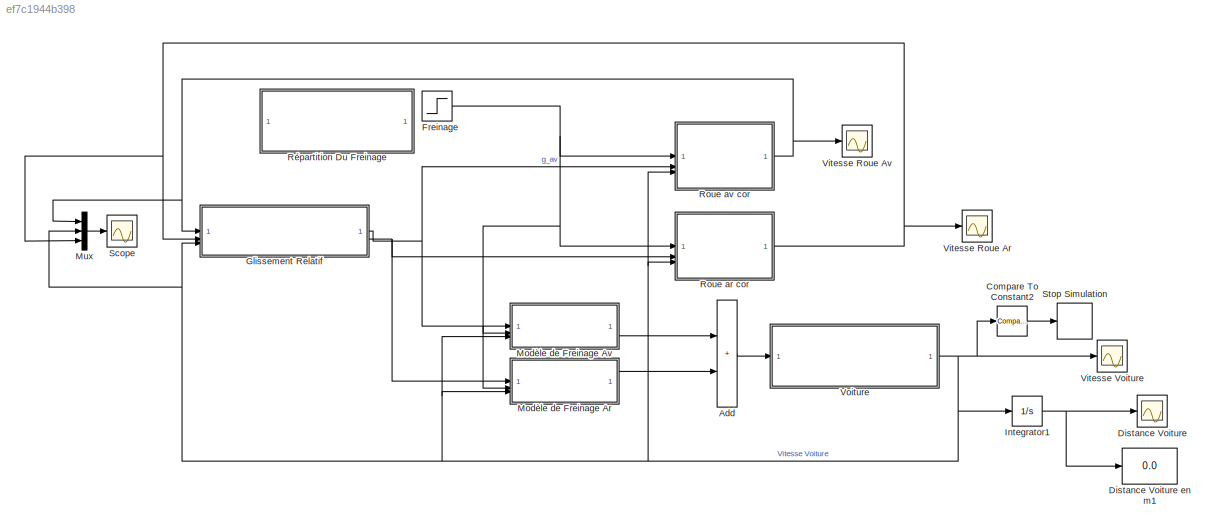
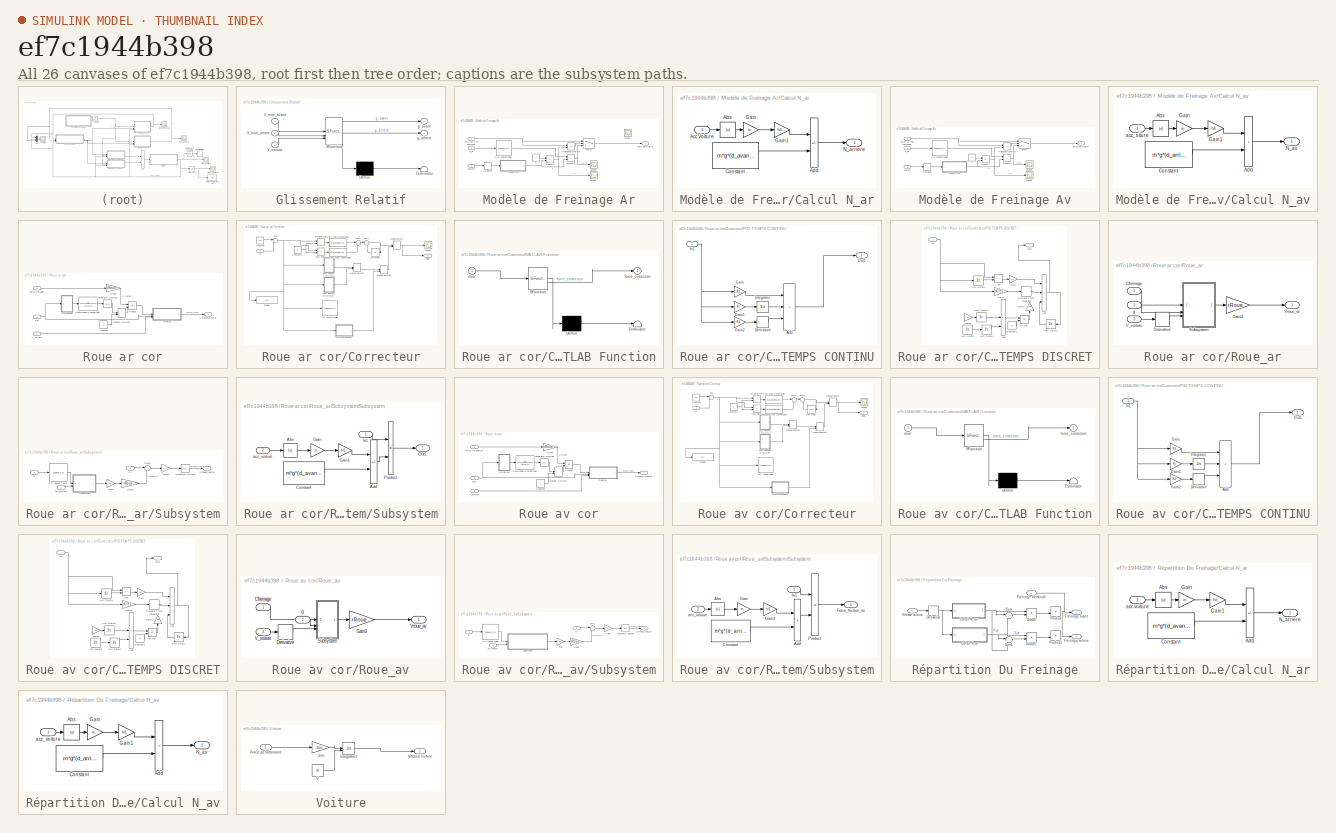
[diagram: thumbnail index - all 26 canvases of the model, root first then tree order]
MODEL slx_ef7c1944b398
KIND model
CONFIG AbsTol = auto
CONFIG EnableMultiTasking = off
CONFIG FixedStep = auto
CONFIG InitFcn = Cte_TP_ABS_CHERIF
CONFIG MaxStep = auto
CONFIG MinStep = auto
CONFIG RelTol = 1e-3
CONFIG SampleTimeConstraint = Unconstrained
CONFIG SolverName = ode45
CONFIG StartTime = 0.0
CONFIG StopTime = 10
BLOCK [Sum] Add
  IconShape = rectangular
BLOCK [Reference] Compare To Constant2  REF=simulink/Logic and Bit
Operations/Compare
To Constant
  SourceBlock = simulink/Logic and Bit\nOperations/Compare\nTo Constant
  SourceType = Compare To Constant
BLOCK [Scope] Distance Voiture
  Floating = off
  NumInputPorts = 1
  ScopeSpecificationString = Simulink.scopes.TimeScopeBlockCfg('CurrentConfiguration', extmgr.ConfigurationSet(extmgr.Configuration('Core','General UI',true),extmgr.Configuration('Core','Source UI',true),extmgr.Configuration('Sources','WiredSimulink',true,'DataLoggingVariableName','ScopeData9'),extmgr.Configuration('Visuals','Time Domain',true,'SerializedDisplays',{struct('MinYLimReal','-7.82528','MaxYLimReal','70.42753','YLa...<+1639ch>
BLOCK [Display] Distance Voiture en m1
  Decimation = 1
BLOCK [Step] Freinage
  After = 4000
  SampleTime = 0
  Time = 0
BLOCK [SubSystem] Glissement Relatif
  ErrorFcn = Stateflow.Translate.translate
  PermitHierarchicalResolution = ExplicitOnly
  SFBlockType = MATLAB Function
  TreatAsAtomicUnit = on
BLOCK [Demux] Glissement Relatif/ Demux 
  Outputs = 1
BLOCK [S-Function] Glissement Relatif/ SFunction 
  EnableBusSupport = on
  FunctionName = sf_sfun
  PortCounts = [3 3]
  SFcnIsStateOwnerBlock = off
  SFunctionDeploymentMode = off
  Tag = Stateflow S-Function 2
BLOCK [Terminator] Glissement Relatif/ Terminator 
BLOCK [Inport] Glissement Relatif/V_roue_arriere
  Port = 2
BLOCK [Inport] Glissement Relatif/V_roue_avant
BLOCK [Inport] Glissement Relatif/V_voiture
  Port = 3
BLOCK [Outport] Glissement Relatif/g_arriere
  Port = 2
BLOCK [Outport] Glissement Relatif/g_avant
BLOCK [Integrator] Integrator1
BLOCK [SubSystem] Modèle de Freinage Ar
BLOCK [Lookup_n-D] Modèle de Freinage Ar/1-D Lookup Table
  BreakpointsForDimension1 = [0;0.050000000000000003;0.10000000000000001;0.14999999999999999;0.20000000000000001;0.25;0.29999999999999999;0.34999999999999998;0.40000000000000002;0.45000000000000001;0.5;0.55000000000000004;0.59999999999999998;0.65000000000000002;0.69999999999999996;0.75;0.80000000000000004;0.84999999999999998;0.90000000000000002;0.94999999999999996;1]  <repeated x4 — deduplicated; at blocks: 1-D Lookup Table>
  InputPortMap = u0
  InternalRulePriority = Speed
  NumberOfTableDimensions = 1
  RndMeth = Simplest
  Table = [0;0.59999999999999998;0.92000000000000004;0.93999999999999995;0.94999999999999996;0.93000000000000005;0.90000000000000002;0.84999999999999998;0.80000000000000004;0.75;0.69999999999999996;0.67000000000000004;0.66000000000000003;0.65000000000000002;0.64500000000000002;0.64000000000000001;0.63700000000000001;0.63500000000000001;0.63;0.625;0.62]  <repeated x4 — deduplicated; at blocks: 1-D Lookup Table>
BLOCK [SubSystem] Modèle de Freinage Ar/Calcul N_ar
BLOCK [Abs] Modèle de Freinage Ar/Calcul N_ar/Abs
  SaturateOnIntegerOverflow = off
BLOCK [Inport] Modèle de Freinage Ar/Calcul N_ar/Acc Voiture
BLOCK [Sum] Modèle de Freinage Ar/Calcul N_ar/Add
  IconShape = rectangular
  Inputs = -+
BLOCK [Constant] Modèle de Freinage Ar/Calcul N_ar/Constant
  Value = m*g*(d_avant/L)
BLOCK [Gain] Modèle de Freinage Ar/Calcul N_ar/Gain
  Gain = m
BLOCK [Gain] Modèle de Freinage Ar/Calcul N_ar/Gain1
  Gain = h/L
BLOCK [Outport] Modèle de Freinage Ar/Calcul N_ar/N_arriere
BLOCK [Derivative] Modèle de Freinage Ar/Derivative
BLOCK [Outport] Modèle de Freinage Ar/Force de frein ar
BLOCK [Inport] Modèle de Freinage Ar/Force de frein demandé
  Port = 2
BLOCK [Product] Modèle de Freinage Ar/Product1
BLOCK [Product] Modèle de Freinage Ar/Product3
BLOCK [RelationalOperator] Modèle de Freinage Ar/Relational Operator
  InputSameDT = off
  Operator = <=
  OutDataTypeStr = boolean
  RndMeth = Simplest
BLOCK [Scope] Modèle de Freinage Ar/Scope
  Floating = off
  NumInputPorts = 1
  ScopeSpecificationString = Simulink.scopes.TimeScopeBlockCfg('CurrentConfiguration', extmgr.ConfigurationSet(extmgr.Configuration('Core','General UI',true),extmgr.Configuration('Core','Source UI',true),extmgr.Configuration('Sources','WiredSimulink',true),extmgr.Configuration('Visuals','Time Domain',true,'SerializedDisplays',{struct('MinYLimReal','-1.00000','MaxYLimReal','1.00000','YLabelReal','','MinYLimMag','0.00000','MaxY...<+1493ch>
BLOCK [Scope] Modèle de Freinage Ar/Scope8
  Floating = off
  NumInputPorts = 1
  ScopeSpecificationString = Simulink.scopes.TimeScopeBlockCfg('CurrentConfiguration', extmgr.ConfigurationSet(extmgr.Configuration('Core','General UI',true),extmgr.Configuration('Core','Source UI',true),extmgr.Configuration('Sources','WiredSimulink',true,'DataLoggingVariableName','ScopeData11'),extmgr.Configuration('Visuals','Time Domain',true,'SerializedDisplays',{struct('MinYLimReal','962.00000','MaxYLimReal','2962.00000',...<+1547ch>
BLOCK [Scope] Modèle de Freinage Ar/Scope9
  Floating = off
  NumInputPorts = 1
  ScopeSpecificationString = Simulink.scopes.TimeScopeBlockCfg('CurrentConfiguration', extmgr.ConfigurationSet(extmgr.Configuration('Core','General UI',true),extmgr.Configuration('Core','Source UI',true),extmgr.Configuration('Sources','WiredSimulink',true,'DataLoggingVariableName','ScopeData12'),extmgr.Configuration('Visuals','Time Domain',true,'SerializedDisplays',{struct('MinYLimReal','-9896.88785','MaxYLimReal','3688.40421...<+1519ch>
BLOCK [Switch] Modèle de Freinage Ar/Switch
  InputSameDT = off
  SaturateOnIntegerOverflow = off
  Threshold = 1
BLOCK [Inport] Modèle de Freinage Ar/Vvoiture
  Port = 3
BLOCK [Constant] Modèle de Freinage Ar/f
  Value = f
BLOCK [Inport] Modèle de Freinage Ar/g_ar
BLOCK [SubSystem] Modèle de Freinage Av
BLOCK [Lookup_n-D] Modèle de Freinage Av/1-D Lookup Table
  InputPortMap = u0
  InternalRulePriority = Speed
  NumberOfTableDimensions = 1
  RndMeth = Simplest
BLOCK [SubSystem] Modèle de Freinage Av/Calcul N_av
BLOCK [Abs] Modèle de Freinage Av/Calcul N_av/Abs
  SaturateOnIntegerOverflow = off
BLOCK [Sum] Modèle de Freinage Av/Calcul N_av/Add
  IconShape = rectangular
BLOCK [Constant] Modèle de Freinage Av/Calcul N_av/Constant
  Value = m*g*(d_arriere/L)
BLOCK [Gain] Modèle de Freinage Av/Calcul N_av/Gain
  Gain = m
BLOCK [Gain] Modèle de Freinage Av/Calcul N_av/Gain1
  Gain = h/L
BLOCK [Outport] Modèle de Freinage Av/Calcul N_av/N_av
BLOCK [Inport] Modèle de Freinage Av/Calcul N_av/acc_oiture
BLOCK [Derivative] Modèle de Freinage Av/Derivative
BLOCK [Outport] Modèle de Freinage Av/Force de frein av
BLOCK [Inport] Modèle de Freinage Av/Force de frein demandé
  Port = 2
BLOCK [Product] Modèle de Freinage Av/Product1
BLOCK [Product] Modèle de Freinage Av/Product3
BLOCK [RelationalOperator] Modèle de Freinage Av/Relational Operator
  InputSameDT = off
  Operator = <=
  OutDataTypeStr = boolean
  RndMeth = Simplest
BLOCK [Scope] Modèle de Freinage Av/Scope8
  Floating = off
  NumInputPorts = 1
  ScopeSpecificationString = Simulink.scopes.TimeScopeBlockCfg('CurrentConfiguration', extmgr.ConfigurationSet(extmgr.Configuration('Core','General UI',true),extmgr.Configuration('Core','Source UI',true),extmgr.Configuration('Sources','WiredSimulink',true,'DataLoggingVariableName','ScopeData11'),extmgr.Configuration('Visuals','Time Domain',true,'SerializedDisplays',{struct('MinYLimReal','962.00000','MaxYLimReal','2962.00000',...<+1547ch>
BLOCK [Scope] Modèle de Freinage Av/Scope9
  Floating = off
  NumInputPorts = 1
  ScopeSpecificationString = Simulink.scopes.TimeScopeBlockCfg('CurrentConfiguration', extmgr.ConfigurationSet(extmgr.Configuration('Core','General UI',true),extmgr.Configuration('Core','Source UI',true),extmgr.Configuration('Sources','WiredSimulink',true,'DataLoggingVariableName','ScopeData12'),extmgr.Configuration('Visuals','Time Domain',true,'SerializedDisplays',{struct('MinYLimReal','-9896.88785','MaxYLimReal','3688.40421...<+1519ch>
BLOCK [Switch] Modèle de Freinage Av/Switch
  InputSameDT = off
  SaturateOnIntegerOverflow = off
  Threshold = 1
BLOCK [Inport] Modèle de Freinage Av/Vvoiture
  Port = 3
BLOCK [Constant] Modèle de Freinage Av/f
  Value = f
BLOCK [Inport] Modèle de Freinage Av/g_av
BLOCK [Mux] Mux
  DisplayOption = bar
  Inputs = 3
BLOCK [SubSystem] Roue ar cor
BLOCK [TransferFcn] Roue ar cor/Commande Hydraulique
  Denominator = [0.01 1]
BLOCK [Constant] Roue ar cor/Constant
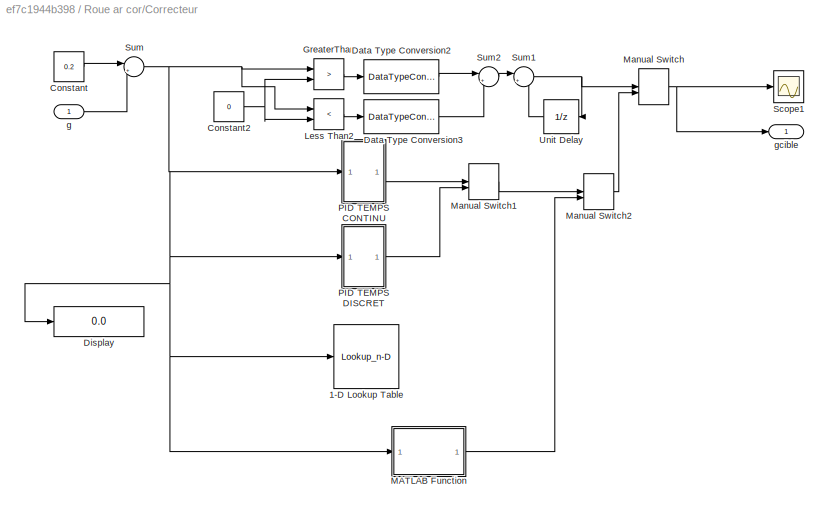
BLOCK [SubSystem] Roue ar cor/Correcteur
BLOCK [Lookup_n-D] Roue ar cor/Correcteur/1-D Lookup Table
  BreakpointsForDimension1 = [-0.80000000000000004;-0.59999999999999998;-0.40000000000000002;-0.20000000000000001;0;0.10000000000000001;0.20000000000000001]
  InputPortMap = u0
  InternalRulePriority = Speed
  NumberOfTableDimensions = 1
  RndMeth = Simplest
  Table = [-800;-600;-400;-200;0;200;400]
BLOCK [Constant] Roue ar cor/Correcteur/Constant
  Value = 0.2
BLOCK [Constant] Roue ar cor/Correcteur/Constant2
  Value = 0
BLOCK [DataTypeConversion] Roue ar cor/Correcteur/Data Type Conversion2
  OutDataTypeStr = double
  SaturateOnIntegerOverflow = off
BLOCK [DataTypeConversion] Roue ar cor/Correcteur/Data Type Conversion3
  OutDataTypeStr = double
  SaturateOnIntegerOverflow = off
BLOCK [Display] Roue ar cor/Correcteur/Display
  Decimation = 1
BLOCK [RelationalOperator] Roue ar cor/Correcteur/GreaterThan
  InputSameDT = off
  Operator = >
  OutDataTypeStr = boolean
  RndMeth = Simplest
BLOCK [RelationalOperator] Roue ar cor/Correcteur/Less Than2
  InputSameDT = off
  Operator = <
  OutDataTypeStr = boolean
  RndMeth = Simplest
BLOCK [SubSystem] Roue ar cor/Correcteur/MATLAB Function
  ErrorFcn = Stateflow.Translate.translate
  PermitHierarchicalResolution = ExplicitOnly
  SFBlockType = MATLAB Function
  TreatAsAtomicUnit = on
BLOCK [Demux] Roue ar cor/Correcteur/MATLAB Function/ Demux 
  Outputs = 1
BLOCK [S-Function] Roue ar cor/Correcteur/MATLAB Function/ SFunction 
  EnableBusSupport = on
  FunctionName = sf_sfun
  PortCounts = [1 2]
  SFcnIsStateOwnerBlock = off
  SFunctionDeploymentMode = off
  Tag = Stateflow S-Function 3
BLOCK [Terminator] Roue ar cor/Correcteur/MATLAB Function/ Terminator 
BLOCK [Inport] Roue ar cor/Correcteur/MATLAB Function/error
BLOCK [Outport] Roue ar cor/Correcteur/MATLAB Function/force_correction
BLOCK [ManualSwitch] Roue ar cor/Correcteur/Manual Switch
  CurrentSetting = 0
BLOCK [ManualSwitch] Roue ar cor/Correcteur/Manual Switch1
BLOCK [ManualSwitch] Roue ar cor/Correcteur/Manual Switch2
BLOCK [SubSystem] Roue ar cor/Correcteur/PID TEMPS CONTINU
BLOCK [Sum] Roue ar cor/Correcteur/PID TEMPS CONTINU/Add
  IconShape = rectangular
  Inputs = +++
BLOCK [Derivative] Roue ar cor/Correcteur/PID TEMPS CONTINU/Derivative
BLOCK [Gain] Roue ar cor/Correcteur/PID TEMPS CONTINU/Gain
  Gain = Kp
BLOCK [Gain] Roue ar cor/Correcteur/PID TEMPS CONTINU/Gain1
  Gain = Ki
BLOCK [Gain] Roue ar cor/Correcteur/PID TEMPS CONTINU/Gain2
  Gain = Kd
BLOCK [Inport] Roue ar cor/Correcteur/PID TEMPS CONTINU/In1
BLOCK [Integrator] Roue ar cor/Correcteur/PID TEMPS CONTINU/Integrator
BLOCK [Outport] Roue ar cor/Correcteur/PID TEMPS CONTINU/Out1
BLOCK [SubSystem] Roue ar cor/Correcteur/PID TEMPS DISCRET
BLOCK [Sum] Roue ar cor/Correcteur/PID TEMPS DISCRET/Add
  IconShape = rectangular
  Inputs = +++
BLOCK [Sum] Roue ar cor/Correcteur/PID TEMPS DISCRET/Add1
  IconShape = rectangular
  Inputs = +-
BLOCK [Sum] Roue ar cor/Correcteur/PID TEMPS DISCRET/Add2
  IconShape = rectangular
  Inputs = -++
BLOCK [Constant] Roue ar cor/Correcteur/PID TEMPS DISCRET/Constant1
  Value = Ts
BLOCK [DiscreteIntegrator] Roue ar cor/Correcteur/PID TEMPS DISCRET/Discrete-Time Integrator
  ICPrevOutput = DiscIntNeverNeededParam
  ICPrevScaledInput = DiscIntNeverNeededParam
  InitialConditionSetting = Auto
  SampleTime = -1
BLOCK [Product] Roue ar cor/Correcteur/PID TEMPS DISCRET/Divide
  Inputs = */
BLOCK [Gain] Roue ar cor/Correcteur/PID TEMPS DISCRET/Gain
  Gain = Kp
BLOCK [Gain] Roue ar cor/Correcteur/PID TEMPS DISCRET/Gain1
  Gain = Ki*Ts
BLOCK [Gain] Roue ar cor/Correcteur/PID TEMPS DISCRET/Gain2
  Gain = 2
BLOCK [Gain] Roue ar cor/Correcteur/PID TEMPS DISCRET/Gain3
  Gain = Kd
  NameLocation = right
BLOCK [Inport] Roue ar cor/Correcteur/PID TEMPS DISCRET/In1
BLOCK [Outport] Roue ar cor/Correcteur/PID TEMPS DISCRET/Out1
BLOCK [UnitDelay] Roue ar cor/Correcteur/PID TEMPS DISCRET/Unit Delay1
  HasFrameUpgradeWarning = on
  SampleTime = 0.0001
BLOCK [UnitDelay] Roue ar cor/Correcteur/PID TEMPS DISCRET/Unit Delay2
  HasFrameUpgradeWarning = on
  NameLocation = top
  SampleTime = 0.0001
BLOCK [UnitDelay] Roue ar cor/Correcteur/PID TEMPS DISCRET/Unit Delay3
  HasFrameUpgradeWarning = on
  SampleTime = 0.0001
BLOCK [UnitDelay] Roue ar cor/Correcteur/PID TEMPS DISCRET/Unit Delay4
  HasFrameUpgradeWarning = on
  SampleTime = 0.0001
BLOCK [UnitDelay] Roue ar cor/Correcteur/PID TEMPS DISCRET/Unit Delay5
  HasFrameUpgradeWarning = on
  SampleTime = 0.0001
BLOCK [Scope] Roue ar cor/Correcteur/Scope1
  Floating = off
  NumInputPorts = 1
  ScopeSpecificationString = Simulink.scopes.TimeScopeBlockCfg('CurrentConfiguration', extmgr.ConfigurationSet(extmgr.Configuration('Core','General UI',true),extmgr.Configuration('Core','Source UI',true),extmgr.Configuration('Sources','WiredSimulink',true,'DataLoggingVariableName','ScopeData3'),extmgr.Configuration('Visuals','Time Domain',true,'SerializedDisplays',{struct('MinYLimReal','-1000.00000','MaxYLimReal','1000.00000'...<+1657ch>
BLOCK [Sum] Roue ar cor/Correcteur/Sum
  Inputs = |+-
BLOCK [Sum] Roue ar cor/Correcteur/Sum1
  Inputs = |++
BLOCK [Sum] Roue ar cor/Correcteur/Sum2
  Inputs = |+-
BLOCK [UnitDelay] Roue ar cor/Correcteur/Unit Delay
  HasFrameUpgradeWarning = on
  NameLocation = top
  SampleTime = 0.0001
BLOCK [Inport] Roue ar cor/Correcteur/g
BLOCK [Outport] Roue ar cor/Correcteur/gcible
BLOCK [Inport] Roue ar cor/Force freinage
BLOCK [Integrator] Roue ar cor/Integrator Limited
  LimitOutput = on
  LowerSaturationLimit = 0
  UpperSaturationLimit = 1000
BLOCK [ManualSwitch] Roue ar cor/Manual Switch1
  CurrentSetting = 0
BLOCK [Product] Roue ar cor/Product
BLOCK [SubSystem] Roue ar cor/Roue_ar
BLOCK [Inport] Roue ar cor/Roue_ar/Cfreinage
BLOCK [Derivative] Roue ar cor/Roue_ar/Derivative
BLOCK [Gain] Roue ar cor/Roue_ar/Gain3
  Gain = rRoue
BLOCK [SubSystem] Roue ar cor/Roue_ar/Subsystem
BLOCK [Lookup_n-D] Roue ar cor/Roue_ar/Subsystem/1-D Lookup Table
  InputPortMap = u0
  InternalRulePriority = Speed
  NumberOfTableDimensions = 1
  RndMeth = Simplest
BLOCK [Inport] Roue ar cor/Roue_ar/Subsystem/Cf
BLOCK [Gain] Roue ar cor/Roue_ar/Subsystem/Gain
  Gain = 0.5
BLOCK [Gain] Roue ar cor/Roue_ar/Subsystem/Gain3
  Gain = rRoue
BLOCK [Gain] Roue ar cor/Roue_ar/Subsystem/Gain4
  Gain = 1/J
BLOCK [Integrator] Roue ar cor/Roue_ar/Subsystem/Integrator Limited
  InitialCondition = v0/rRoue
  LimitOutput = on
  LowerSaturationLimit = 0
  UpperSaturationLimit = 1000
BLOCK [Outport] Roue ar cor/Roue_ar/Subsystem/Omega_roue_ar
BLOCK [SubSystem] Roue ar cor/Roue_ar/Subsystem/Subsystem
BLOCK [Abs] Roue ar cor/Roue_ar/Subsystem/Subsystem/Abs
  SaturateOnIntegerOverflow = off
BLOCK [Sum] Roue ar cor/Roue_ar/Subsystem/Subsystem/Add
  IconShape = rectangular
  Inputs = -+
BLOCK [Constant] Roue ar cor/Roue_ar/Subsystem/Subsystem/Constant
  Value = m*g*(d_avant/L)
BLOCK [Gain] Roue ar cor/Roue_ar/Subsystem/Subsystem/Gain
  Gain = m
BLOCK [Gain] Roue ar cor/Roue_ar/Subsystem/Subsystem/Gain1
  Gain = h/L
BLOCK [Inport] Roue ar cor/Roue_ar/Subsystem/Subsystem/In1
BLOCK [Outport] Roue ar cor/Roue_ar/Subsystem/Subsystem/Out1
BLOCK [Product] Roue ar cor/Roue_ar/Subsystem/Subsystem/Product
BLOCK [Inport] Roue ar cor/Roue_ar/Subsystem/Subsystem/acc_voiture
  Port = 2
BLOCK [Sum] Roue ar cor/Roue_ar/Subsystem/Sum1
  Inputs = |-+
BLOCK [Inport] Roue ar cor/Roue_ar/Subsystem/acc_voiture
  Port = 3
BLOCK [Inport] Roue ar cor/Roue_ar/Subsystem/g
  Port = 2
BLOCK [Inport] Roue ar cor/Roue_ar/V_voiture
  Port = 3
BLOCK [Outport] Roue ar cor/Roue_ar/Vroue_ar
BLOCK [Inport] Roue ar cor/Roue_ar/g
  Port = 2
BLOCK [Gain] Roue ar cor/Rroue
  Gain = rRoue
BLOCK [Inport] Roue ar cor/V_voiture
  Port = 3
BLOCK [Outport] Roue ar cor/Vitesse Roue ar
BLOCK [Inport] Roue ar cor/g_ar
  Port = 2
BLOCK [SubSystem] Roue av cor
BLOCK [TransferFcn] Roue av cor/Commande Hydraulique
  Denominator = [0.01 1]
BLOCK [Constant] Roue av cor/Constant
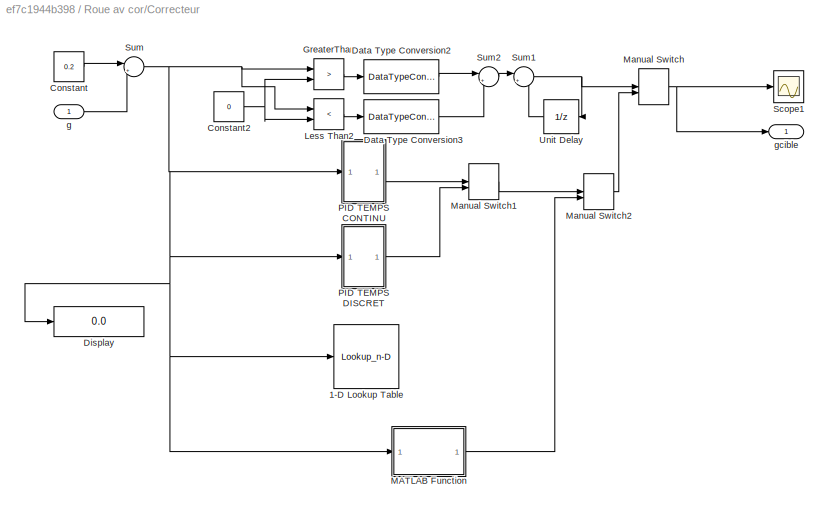
BLOCK [SubSystem] Roue av cor/Correcteur
BLOCK [Lookup_n-D] Roue av cor/Correcteur/1-D Lookup Table
  BreakpointsForDimension1 = [-0.80000000000000004;-0.59999999999999998;-0.40000000000000002;-0.20000000000000001;0;0.10000000000000001;0.20000000000000001]
  InputPortMap = u0
  InternalRulePriority = Speed
  NumberOfTableDimensions = 1
  RndMeth = Simplest
  Table = [-800;-600;-400;-200;0;200;400]
BLOCK [Constant] Roue av cor/Correcteur/Constant
  Value = 0.2
BLOCK [Constant] Roue av cor/Correcteur/Constant2
  Value = 0
BLOCK [DataTypeConversion] Roue av cor/Correcteur/Data Type Conversion2
  OutDataTypeStr = double
  SaturateOnIntegerOverflow = off
BLOCK [DataTypeConversion] Roue av cor/Correcteur/Data Type Conversion3
  OutDataTypeStr = double
  SaturateOnIntegerOverflow = off
BLOCK [Display] Roue av cor/Correcteur/Display
  Decimation = 1
BLOCK [RelationalOperator] Roue av cor/Correcteur/GreaterThan
  InputSameDT = off
  Operator = >
  OutDataTypeStr = boolean
  RndMeth = Simplest
BLOCK [RelationalOperator] Roue av cor/Correcteur/Less Than2
  InputSameDT = off
  Operator = <
  OutDataTypeStr = boolean
  RndMeth = Simplest
BLOCK [SubSystem] Roue av cor/Correcteur/MATLAB Function
  ErrorFcn = Stateflow.Translate.translate
  PermitHierarchicalResolution = ExplicitOnly
  SFBlockType = MATLAB Function
  TreatAsAtomicUnit = on
BLOCK [Demux] Roue av cor/Correcteur/MATLAB Function/ Demux 
  Outputs = 1
BLOCK [S-Function] Roue av cor/Correcteur/MATLAB Function/ SFunction 
  EnableBusSupport = on
  FunctionName = sf_sfun
  PortCounts = [1 2]
  SFcnIsStateOwnerBlock = off
  SFunctionDeploymentMode = off
  Tag = Stateflow S-Function 1
BLOCK [Terminator] Roue av cor/Correcteur/MATLAB Function/ Terminator 
BLOCK [Inport] Roue av cor/Correcteur/MATLAB Function/error
BLOCK [Outport] Roue av cor/Correcteur/MATLAB Function/force_correction
BLOCK [ManualSwitch] Roue av cor/Correcteur/Manual Switch
  CurrentSetting = 0
BLOCK [ManualSwitch] Roue av cor/Correcteur/Manual Switch1
BLOCK [ManualSwitch] Roue av cor/Correcteur/Manual Switch2
BLOCK [SubSystem] Roue av cor/Correcteur/PID TEMPS CONTINU
BLOCK [Sum] Roue av cor/Correcteur/PID TEMPS CONTINU/Add
  IconShape = rectangular
  Inputs = +++
BLOCK [Derivative] Roue av cor/Correcteur/PID TEMPS CONTINU/Derivative
BLOCK [Gain] Roue av cor/Correcteur/PID TEMPS CONTINU/Gain
  Gain = Kp
BLOCK [Gain] Roue av cor/Correcteur/PID TEMPS CONTINU/Gain1
  Gain = Ki
BLOCK [Gain] Roue av cor/Correcteur/PID TEMPS CONTINU/Gain2
  Gain = Kd
BLOCK [Inport] Roue av cor/Correcteur/PID TEMPS CONTINU/In1
BLOCK [Integrator] Roue av cor/Correcteur/PID TEMPS CONTINU/Integrator
BLOCK [Outport] Roue av cor/Correcteur/PID TEMPS CONTINU/Out1
BLOCK [SubSystem] Roue av cor/Correcteur/PID TEMPS DISCRET
BLOCK [Sum] Roue av cor/Correcteur/PID TEMPS DISCRET/Add
  IconShape = rectangular
  Inputs = +++
BLOCK [Sum] Roue av cor/Correcteur/PID TEMPS DISCRET/Add1
  IconShape = rectangular
  Inputs = +-
BLOCK [Sum] Roue av cor/Correcteur/PID TEMPS DISCRET/Add2
  IconShape = rectangular
  Inputs = -++
BLOCK [Constant] Roue av cor/Correcteur/PID TEMPS DISCRET/Constant1
  Value = Ts
BLOCK [DiscreteIntegrator] Roue av cor/Correcteur/PID TEMPS DISCRET/Discrete-Time Integrator
  ICPrevOutput = DiscIntNeverNeededParam
  ICPrevScaledInput = DiscIntNeverNeededParam
  InitialConditionSetting = Auto
  SampleTime = -1
BLOCK [Product] Roue av cor/Correcteur/PID TEMPS DISCRET/Divide
  Inputs = */
BLOCK [Gain] Roue av cor/Correcteur/PID TEMPS DISCRET/Gain
  Gain = Kp
BLOCK [Gain] Roue av cor/Correcteur/PID TEMPS DISCRET/Gain1
  Gain = Ki*Ts
BLOCK [Gain] Roue av cor/Correcteur/PID TEMPS DISCRET/Gain2
  Gain = 2
BLOCK [Gain] Roue av cor/Correcteur/PID TEMPS DISCRET/Gain3
  Gain = Kd
  NameLocation = right
BLOCK [Inport] Roue av cor/Correcteur/PID TEMPS DISCRET/In1
BLOCK [Outport] Roue av cor/Correcteur/PID TEMPS DISCRET/Out1
BLOCK [UnitDelay] Roue av cor/Correcteur/PID TEMPS DISCRET/Unit Delay1
  HasFrameUpgradeWarning = on
  SampleTime = 0.0001
BLOCK [UnitDelay] Roue av cor/Correcteur/PID TEMPS DISCRET/Unit Delay2
  HasFrameUpgradeWarning = on
  NameLocation = top
  SampleTime = 0.0001
BLOCK [UnitDelay] Roue av cor/Correcteur/PID TEMPS DISCRET/Unit Delay3
  HasFrameUpgradeWarning = on
  SampleTime = 0.0001
BLOCK [UnitDelay] Roue av cor/Correcteur/PID TEMPS DISCRET/Unit Delay4
  HasFrameUpgradeWarning = on
  SampleTime = 0.0001
BLOCK [UnitDelay] Roue av cor/Correcteur/PID TEMPS DISCRET/Unit Delay5
  HasFrameUpgradeWarning = on
  SampleTime = 0.0001
BLOCK [Scope] Roue av cor/Correcteur/Scope1
  Floating = off
  NumInputPorts = 1
  ScopeSpecificationString = Simulink.scopes.TimeScopeBlockCfg('CurrentConfiguration', extmgr.ConfigurationSet(extmgr.Configuration('Core','General UI',true),extmgr.Configuration('Core','Source UI',true),extmgr.Configuration('Sources','WiredSimulink',true,'DataLoggingVariableName','ScopeData3'),extmgr.Configuration('Visuals','Time Domain',true,'SerializedDisplays',{struct('MinYLimReal','-132.47087','MaxYLimReal','36.94121','Y...<+1649ch>
BLOCK [Sum] Roue av cor/Correcteur/Sum
  Inputs = |+-
BLOCK [Sum] Roue av cor/Correcteur/Sum1
  Inputs = |++
BLOCK [Sum] Roue av cor/Correcteur/Sum2
  Inputs = |+-
BLOCK [UnitDelay] Roue av cor/Correcteur/Unit Delay
  HasFrameUpgradeWarning = on
  NameLocation = top
  SampleTime = 0.0001
BLOCK [Inport] Roue av cor/Correcteur/g
BLOCK [Outport] Roue av cor/Correcteur/gcible
BLOCK [Inport] Roue av cor/Force freinage av
BLOCK [Integrator] Roue av cor/Integrator Limited
  LimitOutput = on
  LowerSaturationLimit = 0
  UpperSaturationLimit = 1000
BLOCK [ManualSwitch] Roue av cor/Manual Switch1
  CurrentSetting = 0
BLOCK [Product] Roue av cor/Product
BLOCK [SubSystem] Roue av cor/Roue_av
BLOCK [Inport] Roue av cor/Roue_av/Cfreinage
BLOCK [Derivative] Roue av cor/Roue_av/Derivative
BLOCK [Gain] Roue av cor/Roue_av/Gain3
  Gain = rRoue
BLOCK [SubSystem] Roue av cor/Roue_av/Subsystem
BLOCK [Lookup_n-D] Roue av cor/Roue_av/Subsystem/1-D Lookup Table
  InputPortMap = u0
  InternalRulePriority = Speed
  NumberOfTableDimensions = 1
  RndMeth = Simplest
BLOCK [Inport] Roue av cor/Roue_av/Subsystem/Cf
BLOCK [Gain] Roue av cor/Roue_av/Subsystem/Gain
  Gain = 0.5
BLOCK [Gain] Roue av cor/Roue_av/Subsystem/Gain3
  Gain = rRoue
BLOCK [Gain] Roue av cor/Roue_av/Subsystem/Gain4
  Gain = 1/J
BLOCK [Integrator] Roue av cor/Roue_av/Subsystem/Integrator Limited
  InitialCondition = v0/rRoue
  LimitOutput = on
  LowerSaturationLimit = 0
  UpperSaturationLimit = 1000
BLOCK [Outport] Roue av cor/Roue_av/Subsystem/Omega_roue_av
BLOCK [SubSystem] Roue av cor/Roue_av/Subsystem/Subsystem
BLOCK [Abs] Roue av cor/Roue_av/Subsystem/Subsystem/Abs
  SaturateOnIntegerOverflow = off
BLOCK [Sum] Roue av cor/Roue_av/Subsystem/Subsystem/Add
  IconShape = rectangular
BLOCK [Constant] Roue av cor/Roue_av/Subsystem/Subsystem/Constant
  Value = m*g*(d_arriere/L)
BLOCK [Outport] Roue av cor/Roue_av/Subsystem/Subsystem/Force_friction_av
BLOCK [Gain] Roue av cor/Roue_av/Subsystem/Subsystem/Gain
  Gain = m
BLOCK [Gain] Roue av cor/Roue_av/Subsystem/Subsystem/Gain1
  Gain = h/L
BLOCK [Inport] Roue av cor/Roue_av/Subsystem/Subsystem/In1
BLOCK [Product] Roue av cor/Roue_av/Subsystem/Subsystem/Product
BLOCK [Inport] Roue av cor/Roue_av/Subsystem/Subsystem/acc_voiture
  Port = 2
BLOCK [Sum] Roue av cor/Roue_av/Subsystem/Sum1
  Inputs = |-+
BLOCK [Inport] Roue av cor/Roue_av/Subsystem/acc_voiture
  Port = 3
BLOCK [Inport] Roue av cor/Roue_av/Subsystem/g
  Port = 2
BLOCK [Inport] Roue av cor/Roue_av/V_voiture
  Port = 3
BLOCK [Outport] Roue av cor/Roue_av/Vroue_av
BLOCK [Inport] Roue av cor/Roue_av/g
  Port = 2
BLOCK [Gain] Roue av cor/Rroue
  Gain = rRoue
BLOCK [Inport] Roue av cor/V_voiture
  Port = 3
BLOCK [Outport] Roue av cor/Vitesse Roue av
BLOCK [Inport] Roue av cor/g_av
  Port = 2
BLOCK [SubSystem] Répartition Du Freinage
BLOCK [SubSystem] Répartition Du Freinage/Calcul N_ar
BLOCK [Abs] Répartition Du Freinage/Calcul N_ar/Abs
  SaturateOnIntegerOverflow = off
BLOCK [Sum] Répartition Du Freinage/Calcul N_ar/Add
  IconShape = rectangular
  Inputs = -+
BLOCK [Constant] Répartition Du Freinage/Calcul N_ar/Constant
  Value = m*g*(d_avant/L)
BLOCK [Gain] Répartition Du Freinage/Calcul N_ar/Gain
  Gain = m
BLOCK [Gain] Répartition Du Freinage/Calcul N_ar/Gain1
  Gain = h/L
BLOCK [Outport] Répartition Du Freinage/Calcul N_ar/N_arriere
BLOCK [Inport] Répartition Du Freinage/Calcul N_ar/acc voiture
BLOCK [SubSystem] Répartition Du Freinage/Calcul N_av
BLOCK [Abs] Répartition Du Freinage/Calcul N_av/Abs
  SaturateOnIntegerOverflow = off
BLOCK [Sum] Répartition Du Freinage/Calcul N_av/Add
  IconShape = rectangular
BLOCK [Constant] Répartition Du Freinage/Calcul N_av/Constant
  Value = m*g*(d_arriere/L)
BLOCK [Gain] Répartition Du Freinage/Calcul N_av/Gain
  Gain = m
BLOCK [Gain] Répartition Du Freinage/Calcul N_av/Gain1
  Gain = h/L
BLOCK [Outport] Répartition Du Freinage/Calcul N_av/N_av
BLOCK [Inport] Répartition Du Freinage/Calcul N_av/acc_voiture
BLOCK [Derivative] Répartition Du Freinage/Derivative
BLOCK [Product] Répartition Du Freinage/Divide
  Inputs = */
BLOCK [Product] Répartition Du Freinage/Divide1
  Inputs = */
BLOCK [Outport] Répartition Du Freinage/Freinage arriere
  Port = 2
BLOCK [Outport] Répartition Du Freinage/Freinage avant
BLOCK [Inport] Répartition Du Freinage/Freinage demandé
BLOCK [Product] Répartition Du Freinage/Product
BLOCK [Product] Répartition Du Freinage/Product1
BLOCK [Sum] Répartition Du Freinage/Sum
  Inputs = |++
BLOCK [Sum] Répartition Du Freinage/Sum1
  Inputs = |++
BLOCK [Inport] Répartition Du Freinage/Vitesse voiture
  Port = 2
BLOCK [Scope] Scope
  Floating = off
  NumInputPorts = 1
  ScopeSpecificationString = Simulink.scopes.TimeScopeBlockCfg('CurrentConfiguration', extmgr.ConfigurationSet(extmgr.Configuration('Core','General UI',true),extmgr.Configuration('Core','Source UI',true),extmgr.Configuration('Sources','WiredSimulink',true,'DataLoggingVariableName','ScopeData10'),extmgr.Configuration('Visuals','Time Domain',true,'SerializedDisplays',{struct('MinYLimReal','-3.46627','MaxYLimReal','31.2407','YLa...<+1575ch>
BLOCK [Stop] Stop Simulation
BLOCK [Scope] Vitesse Roue Ar
  Floating = off
  NumInputPorts = 1
  ScopeSpecificationString = Simulink.scopes.TimeScopeBlockCfg('CurrentConfiguration', extmgr.ConfigurationSet(extmgr.Configuration('Core','General UI',true),extmgr.Configuration('Core','Source UI',true),extmgr.Configuration('Sources','WiredSimulink',true,'DataLoggingVariableName','ScopeData1'),extmgr.Configuration('Visuals','Time Domain',true,'SerializedDisplays',{struct('MinYLimReal','-3.47125','MaxYLimReal','31.24125','YLa...<+1640ch>
BLOCK [Scope] Vitesse Roue Av
  Floating = off
  NumInputPorts = 1
  ScopeSpecificationString = Simulink.scopes.TimeScopeBlockCfg('CurrentConfiguration', extmgr.ConfigurationSet(extmgr.Configuration('Core','General UI',true),extmgr.Configuration('Core','Source UI',true),extmgr.Configuration('Sources','WiredSimulink',true,'DataLoggingVariableName','ScopeData1'),extmgr.Configuration('Visuals','Time Domain',true,'SerializedDisplays',{struct('MinYLimReal','-3.47125','MaxYLimReal','31.24125','YLa...<+1640ch>
BLOCK [Scope] Vitesse Voiture
  Floating = off
  NumInputPorts = 1
  ScopeSpecificationString = Simulink.scopes.TimeScopeBlockCfg('CurrentConfiguration', extmgr.ConfigurationSet(extmgr.Configuration('Core','General UI',true),extmgr.Configuration('Core','Source UI',true),extmgr.Configuration('Sources','WiredSimulink',true,'DataLoggingVariableName','ScopeData2'),extmgr.Configuration('Visuals','Time Domain',true,'SerializedDisplays',{struct('MinYLimReal','-3.3422','MaxYLimReal','31.22691','YLab...<+1507ch>
BLOCK [SubSystem] Voiture
BLOCK [Gain] Voiture/-1//m
  Gain = -1/m
BLOCK [Inport] Voiture/Force de forttement
BLOCK [Integrator] Voiture/Integrator1
  InitialConditionSource = external
BLOCK [Constant] Voiture/V
  Value = v0
BLOCK [Outport] Voiture/Vitesse voiture
LINE Add:1 -> Voiture:1
LINE Compare To Constant2:1 -> Stop Simulation:1
NET Freinage:1 -> Modèle de Freinage Ar:2, Modèle de Freinage Av:2, Roue ar cor:1, Roue av cor:1
NET Glissement Relatif:1 -> Modèle de Freinage Av:1, Roue av cor:2
NET Glissement Relatif:2 -> Modèle de Freinage Ar:1, Roue ar cor:2
NET Integrator1:1 -> Distance Voiture en m1:1, Distance Voiture:1
LINE Modèle de Freinage Ar/1-D Lookup Table:1 -> Modèle de Freinage Ar/Product3:1
LINE Modèle de Freinage Ar/Calcul N_ar/Abs:1 -> Modèle de Freinage Ar/Calcul N_ar/Gain:1
LINE Modèle de Freinage Ar/Calcul N_ar/Acc Voiture:1 -> Modèle de Freinage Ar/Calcul N_ar/Abs:1
LINE Modèle de Freinage Ar/Calcul N_ar/Add:1 -> Modèle de Freinage Ar/Calcul N_ar/N_arriere:1
LINE Modèle de Freinage Ar/Calcul N_ar/Constant:1 -> Modèle de Freinage Ar/Calcul N_ar/Add:2
LINE Modèle de Freinage Ar/Calcul N_ar/Gain1:1 -> Modèle de Freinage Ar/Calcul N_ar/Add:1
LINE Modèle de Freinage Ar/Calcul N_ar/Gain:1 -> Modèle de Freinage Ar/Calcul N_ar/Gain1:1
NET Modèle de Freinage Ar/Calcul N_ar:1 -> Modèle de Freinage Ar/Product1:2, Modèle de Freinage Ar/Product3:2
LINE Modèle de Freinage Ar/Derivative:1 -> Modèle de Freinage Ar/Calcul N_ar:1
NET Modèle de Freinage Ar/Force de frein demandé:1 -> Modèle de Freinage Ar/Relational Operator:1, Modèle de Freinage Ar/Switch:1
NET Modèle de Freinage Ar/Product1:1 -> Modèle de Freinage Ar/Relational Operator:2, Modèle de Freinage Ar/Scope8:1
NET Modèle de Freinage Ar/Product3:1 -> Modèle de Freinage Ar/Scope9:1, Modèle de Freinage Ar/Switch:3
LINE Modèle de Freinage Ar/Relational Operator:1 -> Modèle de Freinage Ar/Switch:2
LINE Modèle de Freinage Ar/Switch:1 -> Modèle de Freinage Ar/Force de frein ar:1
LINE Modèle de Freinage Ar/Vvoiture:1 -> Modèle de Freinage Ar/Derivative:1
LINE Modèle de Freinage Ar/f:1 -> Modèle de Freinage Ar/Product1:1
LINE Modèle de Freinage Ar/g_ar:1 -> Modèle de Freinage Ar/1-D Lookup Table:1
LINE Modèle de Freinage Ar:1 -> Add:2
LINE Modèle de Freinage Av/1-D Lookup Table:1 -> Modèle de Freinage Av/Product3:1
LINE Modèle de Freinage Av/Calcul N_av/Abs:1 -> Modèle de Freinage Av/Calcul N_av/Gain:1
LINE Modèle de Freinage Av/Calcul N_av/Add:1 -> Modèle de Freinage Av/Calcul N_av/N_av:1
LINE Modèle de Freinage Av/Calcul N_av/Constant:1 -> Modèle de Freinage Av/Calcul N_av/Add:2
LINE Modèle de Freinage Av/Calcul N_av/Gain1:1 -> Modèle de Freinage Av/Calcul N_av/Add:1
LINE Modèle de Freinage Av/Calcul N_av/Gain:1 -> Modèle de Freinage Av/Calcul N_av/Gain1:1
LINE Modèle de Freinage Av/Calcul N_av/acc_oiture:1 -> Modèle de Freinage Av/Calcul N_av/Abs:1
NET Modèle de Freinage Av/Calcul N_av:1 -> Modèle de Freinage Av/Product1:2, Modèle de Freinage Av/Product3:2
LINE Modèle de Freinage Av/Derivative:1 -> Modèle de Freinage Av/Calcul N_av:1
NET Modèle de Freinage Av/Force de frein demandé:1 -> Modèle de Freinage Av/Relational Operator:1, Modèle de Freinage Av/Switch:1
NET Modèle de Freinage Av/Product1:1 -> Modèle de Freinage Av/Relational Operator:2, Modèle de Freinage Av/Scope8:1
NET Modèle de Freinage Av/Product3:1 -> Modèle de Freinage Av/Scope9:1, Modèle de Freinage Av/Switch:3
LINE Modèle de Freinage Av/Relational Operator:1 -> Modèle de Freinage Av/Switch:2
LINE Modèle de Freinage Av/Switch:1 -> Modèle de Freinage Av/Force de frein av:1
LINE Modèle de Freinage Av/Vvoiture:1 -> Modèle de Freinage Av/Derivative:1
LINE Modèle de Freinage Av/f:1 -> Modèle de Freinage Av/Product1:1
LINE Modèle de Freinage Av/g_av:1 -> Modèle de Freinage Av/1-D Lookup Table:1
LINE Modèle de Freinage Av:1 -> Add:1
LINE Mux:1 -> Scope:1
LINE Roue ar cor/Commande Hydraulique:1 -> Roue ar cor/Integrator Limited:1
LINE Roue ar cor/Constant:1 -> Roue ar cor/Manual Switch1:2
NET Roue ar cor/Correcteur/Constant2:1 -> Roue ar cor/Correcteur/GreaterThan:2, Roue ar cor/Correcteur/Less Than2:2
LINE Roue ar cor/Correcteur/Constant:1 -> Roue ar cor/Correcteur/Sum:1
LINE Roue ar cor/Correcteur/Data Type Conversion2:1 -> Roue ar cor/Correcteur/Sum2:1
LINE Roue ar cor/Correcteur/Data Type Conversion3:1 -> Roue ar cor/Correcteur/Sum2:2
LINE Roue ar cor/Correcteur/GreaterThan:1 -> Roue ar cor/Correcteur/Data Type Conversion2:1
LINE Roue ar cor/Correcteur/Less Than2:1 -> Roue ar cor/Correcteur/Data Type Conversion3:1
LINE Roue ar cor/Correcteur/MATLAB Function:1 -> Roue ar cor/Correcteur/Manual Switch2:2
LINE Roue ar cor/Correcteur/Manual Switch1:1 -> Roue ar cor/Correcteur/Manual Switch2:1
LINE Roue ar cor/Correcteur/Manual Switch2:1 -> Roue ar cor/Correcteur/Manual Switch:2
NET Roue ar cor/Correcteur/Manual Switch:1 -> Roue ar cor/Correcteur/Scope1:1, Roue ar cor/Correcteur/gcible:1
LINE Roue ar cor/Correcteur/PID TEMPS CONTINU/Add:1 -> Roue ar cor/Correcteur/PID TEMPS CONTINU/Out1:1
LINE Roue ar cor/Correcteur/PID TEMPS CONTINU/Derivative:1 -> Roue ar cor/Correcteur/PID TEMPS CONTINU/Add:3
LINE Roue ar cor/Correcteur/PID TEMPS CONTINU/Gain1:1 -> Roue ar cor/Correcteur/PID TEMPS CONTINU/Integrator:1
LINE Roue ar cor/Correcteur/PID TEMPS CONTINU/Gain2:1 -> Roue ar cor/Correcteur/PID TEMPS CONTINU/Derivative:1
LINE Roue ar cor/Correcteur/PID TEMPS CONTINU/Gain:1 -> Roue ar cor/Correcteur/PID TEMPS CONTINU/Add:1
NET Roue ar cor/Correcteur/PID TEMPS CONTINU/In1:1 -> Roue ar cor/Correcteur/PID TEMPS CONTINU/Gain1:1, Roue ar cor/Correcteur/PID TEMPS CONTINU/Gain2:1, Roue ar cor/Correcteur/PID TEMPS CONTINU/Gain:1
LINE Roue ar cor/Correcteur/PID TEMPS CONTINU/Integrator:1 -> Roue ar cor/Correcteur/PID TEMPS CONTINU/Add:2
LINE Roue ar cor/Correcteur/PID TEMPS CONTINU:1 -> Roue ar cor/Correcteur/Manual Switch1:1
LINE Roue ar cor/Correcteur/PID TEMPS DISCRET/Add1:1 -> Roue ar cor/Correcteur/PID TEMPS DISCRET/Gain:1
LINE Roue ar cor/Correcteur/PID TEMPS DISCRET/Add2:1 -> Roue ar cor/Correcteur/PID TEMPS DISCRET/Divide:1
NET Roue ar cor/Correcteur/PID TEMPS DISCRET/Add:1 -> Roue ar cor/Correcteur/PID TEMPS DISCRET/Out1:1, Roue ar cor/Correcteur/PID TEMPS DISCRET/Unit Delay2:1
LINE Roue ar cor/Correcteur/PID TEMPS DISCRET/Constant1:1 -> Roue ar cor/Correcteur/PID TEMPS DISCRET/Divide:2
LINE Roue ar cor/Correcteur/PID TEMPS DISCRET/Discrete-Time Integrator:1 -> Roue ar cor/Correcteur/PID TEMPS DISCRET/Add:2
LINE Roue ar cor/Correcteur/PID TEMPS DISCRET/Divide:1 -> Roue ar cor/Correcteur/PID TEMPS DISCRET/Gain3:1
LINE Roue ar cor/Correcteur/PID TEMPS DISCRET/Gain1:1 -> Roue ar cor/Correcteur/PID TEMPS DISCRET/Discrete-Time Integrator:1
LINE Roue ar cor/Correcteur/PID TEMPS DISCRET/Gain2:1 -> Roue ar cor/Correcteur/PID TEMPS DISCRET/Unit Delay5:1
LINE Roue ar cor/Correcteur/PID TEMPS DISCRET/Gain:1 -> Roue ar cor/Correcteur/PID TEMPS DISCRET/Add:1
NET Roue ar cor/Correcteur/PID TEMPS DISCRET/In1:1 -> Roue ar cor/Correcteur/PID TEMPS DISCRET/Add1:1, Roue ar cor/Correcteur/PID TEMPS DISCRET/Gain1:1, Roue ar cor/Correcteur/PID TEMPS DISCRET/Unit Delay1:1
LINE Roue ar cor/Correcteur/PID TEMPS DISCRET/Unit Delay1:1 -> Roue ar cor/Correcteur/PID TEMPS DISCRET/Add1:2
LINE Roue ar cor/Correcteur/PID TEMPS DISCRET/Unit Delay2:1 -> Roue ar cor/Correcteur/PID TEMPS DISCRET/Add:3
LINE Roue ar cor/Correcteur/PID TEMPS DISCRET/Unit Delay3:1 -> Roue ar cor/Correcteur/PID TEMPS DISCRET/Unit Delay4:1
LINE Roue ar cor/Correcteur/PID TEMPS DISCRET/Unit Delay4:1 -> Roue ar cor/Correcteur/PID TEMPS DISCRET/Add2:3
LINE Roue ar cor/Correcteur/PID TEMPS DISCRET/Unit Delay5:1 -> Roue ar cor/Correcteur/PID TEMPS DISCRET/Add2:2
LINE Roue ar cor/Correcteur/PID TEMPS DISCRET:1 -> Roue ar cor/Correcteur/Manual Switch1:2
NET Roue ar cor/Correcteur/Sum1:1 -> Roue ar cor/Correcteur/Manual Switch:1, Roue ar cor/Correcteur/Unit Delay:1
LINE Roue ar cor/Correcteur/Sum2:1 -> Roue ar cor/Correcteur/Sum1:1
NET Roue ar cor/Correcteur/Sum:1 -> Roue ar cor/Correcteur/1-D Lookup Table:1, Roue ar cor/Correcteur/Display:1, Roue ar cor/Correcteur/GreaterThan:1, Roue ar cor/Correcteur/Less Than2:1, Roue ar cor/Correcteur/MATLAB Function:1, Roue ar cor/Correcteur/PID TEMPS CONTINU:1, Roue ar cor/Correcteur/PID TEMPS DISCRET:1
LINE Roue ar cor/Correcteur/Unit Delay:1 -> Roue ar cor/Correcteur/Sum1:2
LINE Roue ar cor/Correcteur/g:1 -> Roue ar cor/Correcteur/Sum:2
LINE Roue ar cor/Correcteur:1 -> Roue ar cor/Commande Hydraulique:1
LINE Roue ar cor/Force freinage:1 -> Roue ar cor/Rroue:1
LINE Roue ar cor/Integrator Limited:1 -> Roue ar cor/Manual Switch1:1
LINE Roue ar cor/Manual Switch1:1 -> Roue ar cor/Product:2
LINE Roue ar cor/Product:1 -> Roue ar cor/Roue_ar:1
LINE Roue ar cor/Roue_ar/Cfreinage:1 -> Roue ar cor/Roue_ar/Subsystem:1
LINE Roue ar cor/Roue_ar/Derivative:1 -> Roue ar cor/Roue_ar/Subsystem:3
LINE Roue ar cor/Roue_ar/Gain3:1 -> Roue ar cor/Roue_ar/Vroue_ar:1
LINE Roue ar cor/Roue_ar/Subsystem/1-D Lookup Table:1 -> Roue ar cor/Roue_ar/Subsystem/Subsystem:1
LINE Roue ar cor/Roue_ar/Subsystem/Cf:1 -> Roue ar cor/Roue_ar/Subsystem/Sum1:1
LINE Roue ar cor/Roue_ar/Subsystem/Gain3:1 -> Roue ar cor/Roue_ar/Subsystem/Sum1:2
LINE Roue ar cor/Roue_ar/Subsystem/Gain4:1 -> Roue ar cor/Roue_ar/Subsystem/Integrator Limited:1
LINE Roue ar cor/Roue_ar/Subsystem/Gain:1 -> Roue ar cor/Roue_ar/Subsystem/Gain3:1
LINE Roue ar cor/Roue_ar/Subsystem/Integrator Limited:1 -> Roue ar cor/Roue_ar/Subsystem/Omega_roue_ar:1
LINE Roue ar cor/Roue_ar/Subsystem/Subsystem/Abs:1 -> Roue ar cor/Roue_ar/Subsystem/Subsystem/Gain:1
LINE Roue ar cor/Roue_ar/Subsystem/Subsystem/Add:1 -> Roue ar cor/Roue_ar/Subsystem/Subsystem/Product:2
LINE Roue ar cor/Roue_ar/Subsystem/Subsystem/Constant:1 -> Roue ar cor/Roue_ar/Subsystem/Subsystem/Add:2
LINE Roue ar cor/Roue_ar/Subsystem/Subsystem/Gain1:1 -> Roue ar cor/Roue_ar/Subsystem/Subsystem/Add:1
LINE Roue ar cor/Roue_ar/Subsystem/Subsystem/Gain:1 -> Roue ar cor/Roue_ar/Subsystem/Subsystem/Gain1:1
LINE Roue ar cor/Roue_ar/Subsystem/Subsystem/In1:1 -> Roue ar cor/Roue_ar/Subsystem/Subsystem/Product:1
LINE Roue ar cor/Roue_ar/Subsystem/Subsystem/Product:1 -> Roue ar cor/Roue_ar/Subsystem/Subsystem/Out1:1
LINE Roue ar cor/Roue_ar/Subsystem/Subsystem/acc_voiture:1 -> Roue ar cor/Roue_ar/Subsystem/Subsystem/Abs:1
LINE Roue ar cor/Roue_ar/Subsystem/Subsystem:1 -> Roue ar cor/Roue_ar/Subsystem/Gain:1
LINE Roue ar cor/Roue_ar/Subsystem/Sum1:1 -> Roue ar cor/Roue_ar/Subsystem/Gain4:1
LINE Roue ar cor/Roue_ar/Subsystem/acc_voiture:1 -> Roue ar cor/Roue_ar/Subsystem/Subsystem:2
LINE Roue ar cor/Roue_ar/Subsystem/g:1 -> Roue ar cor/Roue_ar/Subsystem/1-D Lookup Table:1
LINE Roue ar cor/Roue_ar/Subsystem:1 -> Roue ar cor/Roue_ar/Gain3:1
LINE Roue ar cor/Roue_ar/V_voiture:1 -> Roue ar cor/Roue_ar/Derivative:1
LINE Roue ar cor/Roue_ar/g:1 -> Roue ar cor/Roue_ar/Subsystem:2
LINE Roue ar cor/Roue_ar:1 -> Roue ar cor/Vitesse Roue ar:1
LINE Roue ar cor/Rroue:1 -> Roue ar cor/Product:1
LINE Roue ar cor/V_voiture:1 -> Roue ar cor/Roue_ar:3
NET Roue ar cor/g_ar:1 -> Roue ar cor/Correcteur:1, Roue ar cor/Roue_ar:2
NET Roue ar cor:1 -> Glissement Relatif:2, Mux:3, Vitesse Roue Ar:1
LINE Roue av cor/Commande Hydraulique:1 -> Roue av cor/Integrator Limited:1
LINE Roue av cor/Constant:1 -> Roue av cor/Manual Switch1:2
NET Roue av cor/Correcteur/Constant2:1 -> Roue av cor/Correcteur/GreaterThan:2, Roue av cor/Correcteur/Less Than2:2
LINE Roue av cor/Correcteur/Constant:1 -> Roue av cor/Correcteur/Sum:1
LINE Roue av cor/Correcteur/Data Type Conversion2:1 -> Roue av cor/Correcteur/Sum2:1
LINE Roue av cor/Correcteur/Data Type Conversion3:1 -> Roue av cor/Correcteur/Sum2:2
LINE Roue av cor/Correcteur/GreaterThan:1 -> Roue av cor/Correcteur/Data Type Conversion2:1
LINE Roue av cor/Correcteur/Less Than2:1 -> Roue av cor/Correcteur/Data Type Conversion3:1
LINE Roue av cor/Correcteur/MATLAB Function:1 -> Roue av cor/Correcteur/Manual Switch2:2
LINE Roue av cor/Correcteur/Manual Switch1:1 -> Roue av cor/Correcteur/Manual Switch2:1
LINE Roue av cor/Correcteur/Manual Switch2:1 -> Roue av cor/Correcteur/Manual Switch:2
NET Roue av cor/Correcteur/Manual Switch:1 -> Roue av cor/Correcteur/Scope1:1, Roue av cor/Correcteur/gcible:1
LINE Roue av cor/Correcteur/PID TEMPS CONTINU/Add:1 -> Roue av cor/Correcteur/PID TEMPS CONTINU/Out1:1
LINE Roue av cor/Correcteur/PID TEMPS CONTINU/Derivative:1 -> Roue av cor/Correcteur/PID TEMPS CONTINU/Add:3
LINE Roue av cor/Correcteur/PID TEMPS CONTINU/Gain1:1 -> Roue av cor/Correcteur/PID TEMPS CONTINU/Integrator:1
LINE Roue av cor/Correcteur/PID TEMPS CONTINU/Gain2:1 -> Roue av cor/Correcteur/PID TEMPS CONTINU/Derivative:1
LINE Roue av cor/Correcteur/PID TEMPS CONTINU/Gain:1 -> Roue av cor/Correcteur/PID TEMPS CONTINU/Add:1
NET Roue av cor/Correcteur/PID TEMPS CONTINU/In1:1 -> Roue av cor/Correcteur/PID TEMPS CONTINU/Gain1:1, Roue av cor/Correcteur/PID TEMPS CONTINU/Gain2:1, Roue av cor/Correcteur/PID TEMPS CONTINU/Gain:1
LINE Roue av cor/Correcteur/PID TEMPS CONTINU/Integrator:1 -> Roue av cor/Correcteur/PID TEMPS CONTINU/Add:2
LINE Roue av cor/Correcteur/PID TEMPS CONTINU:1 -> Roue av cor/Correcteur/Manual Switch1:1
LINE Roue av cor/Correcteur/PID TEMPS DISCRET/Add1:1 -> Roue av cor/Correcteur/PID TEMPS DISCRET/Gain:1
LINE Roue av cor/Correcteur/PID TEMPS DISCRET/Add2:1 -> Roue av cor/Correcteur/PID TEMPS DISCRET/Divide:1
NET Roue av cor/Correcteur/PID TEMPS DISCRET/Add:1 -> Roue av cor/Correcteur/PID TEMPS DISCRET/Out1:1, Roue av cor/Correcteur/PID TEMPS DISCRET/Unit Delay2:1
LINE Roue av cor/Correcteur/PID TEMPS DISCRET/Constant1:1 -> Roue av cor/Correcteur/PID TEMPS DISCRET/Divide:2
LINE Roue av cor/Correcteur/PID TEMPS DISCRET/Discrete-Time Integrator:1 -> Roue av cor/Correcteur/PID TEMPS DISCRET/Add:2
LINE Roue av cor/Correcteur/PID TEMPS DISCRET/Divide:1 -> Roue av cor/Correcteur/PID TEMPS DISCRET/Gain3:1
LINE Roue av cor/Correcteur/PID TEMPS DISCRET/Gain1:1 -> Roue av cor/Correcteur/PID TEMPS DISCRET/Discrete-Time Integrator:1
LINE Roue av cor/Correcteur/PID TEMPS DISCRET/Gain2:1 -> Roue av cor/Correcteur/PID TEMPS DISCRET/Unit Delay5:1
LINE Roue av cor/Correcteur/PID TEMPS DISCRET/Gain:1 -> Roue av cor/Correcteur/PID TEMPS DISCRET/Add:1
NET Roue av cor/Correcteur/PID TEMPS DISCRET/In1:1 -> Roue av cor/Correcteur/PID TEMPS DISCRET/Add1:1, Roue av cor/Correcteur/PID TEMPS DISCRET/Gain1:1, Roue av cor/Correcteur/PID TEMPS DISCRET/Unit Delay1:1
LINE Roue av cor/Correcteur/PID TEMPS DISCRET/Unit Delay1:1 -> Roue av cor/Correcteur/PID TEMPS DISCRET/Add1:2
LINE Roue av cor/Correcteur/PID TEMPS DISCRET/Unit Delay2:1 -> Roue av cor/Correcteur/PID TEMPS DISCRET/Add:3
LINE Roue av cor/Correcteur/PID TEMPS DISCRET/Unit Delay3:1 -> Roue av cor/Correcteur/PID TEMPS DISCRET/Unit Delay4:1
LINE Roue av cor/Correcteur/PID TEMPS DISCRET/Unit Delay4:1 -> Roue av cor/Correcteur/PID TEMPS DISCRET/Add2:3
LINE Roue av cor/Correcteur/PID TEMPS DISCRET/Unit Delay5:1 -> Roue av cor/Correcteur/PID TEMPS DISCRET/Add2:2
LINE Roue av cor/Correcteur/PID TEMPS DISCRET:1 -> Roue av cor/Correcteur/Manual Switch1:2
NET Roue av cor/Correcteur/Sum1:1 -> Roue av cor/Correcteur/Manual Switch:1, Roue av cor/Correcteur/Unit Delay:1
LINE Roue av cor/Correcteur/Sum2:1 -> Roue av cor/Correcteur/Sum1:1
NET Roue av cor/Correcteur/Sum:1 -> Roue av cor/Correcteur/1-D Lookup Table:1, Roue av cor/Correcteur/Display:1, Roue av cor/Correcteur/GreaterThan:1, Roue av cor/Correcteur/Less Than2:1, Roue av cor/Correcteur/MATLAB Function:1, Roue av cor/Correcteur/PID TEMPS CONTINU:1, Roue av cor/Correcteur/PID TEMPS DISCRET:1
LINE Roue av cor/Correcteur/Unit Delay:1 -> Roue av cor/Correcteur/Sum1:2
LINE Roue av cor/Correcteur/g:1 -> Roue av cor/Correcteur/Sum:2
LINE Roue av cor/Correcteur:1 -> Roue av cor/Commande Hydraulique:1
LINE Roue av cor/Force freinage av:1 -> Roue av cor/Rroue:1
LINE Roue av cor/Integrator Limited:1 -> Roue av cor/Manual Switch1:1
LINE Roue av cor/Manual Switch1:1 -> Roue av cor/Product:2
LINE Roue av cor/Product:1 -> Roue av cor/Roue_av:1
LINE Roue av cor/Roue_av/Cfreinage:1 -> Roue av cor/Roue_av/Subsystem:1
LINE Roue av cor/Roue_av/Derivative:1 -> Roue av cor/Roue_av/Subsystem:3
LINE Roue av cor/Roue_av/Gain3:1 -> Roue av cor/Roue_av/Vroue_av:1
LINE Roue av cor/Roue_av/Subsystem/1-D Lookup Table:1 -> Roue av cor/Roue_av/Subsystem/Subsystem:1
LINE Roue av cor/Roue_av/Subsystem/Cf:1 -> Roue av cor/Roue_av/Subsystem/Sum1:1
LINE Roue av cor/Roue_av/Subsystem/Gain3:1 -> Roue av cor/Roue_av/Subsystem/Sum1:2
LINE Roue av cor/Roue_av/Subsystem/Gain4:1 -> Roue av cor/Roue_av/Subsystem/Integrator Limited:1
LINE Roue av cor/Roue_av/Subsystem/Gain:1 -> Roue av cor/Roue_av/Subsystem/Gain3:1
LINE Roue av cor/Roue_av/Subsystem/Integrator Limited:1 -> Roue av cor/Roue_av/Subsystem/Omega_roue_av:1
LINE Roue av cor/Roue_av/Subsystem/Subsystem/Abs:1 -> Roue av cor/Roue_av/Subsystem/Subsystem/Gain:1
LINE Roue av cor/Roue_av/Subsystem/Subsystem/Add:1 -> Roue av cor/Roue_av/Subsystem/Subsystem/Product:2
LINE Roue av cor/Roue_av/Subsystem/Subsystem/Constant:1 -> Roue av cor/Roue_av/Subsystem/Subsystem/Add:2
LINE Roue av cor/Roue_av/Subsystem/Subsystem/Gain1:1 -> Roue av cor/Roue_av/Subsystem/Subsystem/Add:1
LINE Roue av cor/Roue_av/Subsystem/Subsystem/Gain:1 -> Roue av cor/Roue_av/Subsystem/Subsystem/Gain1:1
LINE Roue av cor/Roue_av/Subsystem/Subsystem/In1:1 -> Roue av cor/Roue_av/Subsystem/Subsystem/Product:1
LINE Roue av cor/Roue_av/Subsystem/Subsystem/Product:1 -> Roue av cor/Roue_av/Subsystem/Subsystem/Force_friction_av:1
LINE Roue av cor/Roue_av/Subsystem/Subsystem/acc_voiture:1 -> Roue av cor/Roue_av/Subsystem/Subsystem/Abs:1
LINE Roue av cor/Roue_av/Subsystem/Subsystem:1 -> Roue av cor/Roue_av/Subsystem/Gain:1
LINE Roue av cor/Roue_av/Subsystem/Sum1:1 -> Roue av cor/Roue_av/Subsystem/Gain4:1
LINE Roue av cor/Roue_av/Subsystem/acc_voiture:1 -> Roue av cor/Roue_av/Subsystem/Subsystem:2
LINE Roue av cor/Roue_av/Subsystem/g:1 -> Roue av cor/Roue_av/Subsystem/1-D Lookup Table:1
LINE Roue av cor/Roue_av/Subsystem:1 -> Roue av cor/Roue_av/Gain3:1
LINE Roue av cor/Roue_av/V_voiture:1 -> Roue av cor/Roue_av/Derivative:1
LINE Roue av cor/Roue_av/g:1 -> Roue av cor/Roue_av/Subsystem:2
LINE Roue av cor/Roue_av:1 -> Roue av cor/Vitesse Roue av:1
LINE Roue av cor/Rroue:1 -> Roue av cor/Product:1
LINE Roue av cor/V_voiture:1 -> Roue av cor/Roue_av:3
NET Roue av cor/g_av:1 -> Roue av cor/Correcteur:1, Roue av cor/Roue_av:2
NET Roue av cor:1 -> Glissement Relatif:1, Mux:1, Vitesse Roue Av:1
LINE Répartition Du Freinage/Calcul N_ar/Abs:1 -> Répartition Du Freinage/Calcul N_ar/Gain:1
LINE Répartition Du Freinage/Calcul N_ar/Add:1 -> Répartition Du Freinage/Calcul N_ar/N_arriere:1
LINE Répartition Du Freinage/Calcul N_ar/Constant:1 -> Répartition Du Freinage/Calcul N_ar/Add:2
LINE Répartition Du Freinage/Calcul N_ar/Gain1:1 -> Répartition Du Freinage/Calcul N_ar/Add:1
LINE Répartition Du Freinage/Calcul N_ar/Gain:1 -> Répartition Du Freinage/Calcul N_ar/Gain1:1
LINE Répartition Du Freinage/Calcul N_ar/acc voiture:1 -> Répartition Du Freinage/Calcul N_ar/Abs:1
NET Répartition Du Freinage/Calcul N_ar:1 -> Répartition Du Freinage/Divide1:1, Répartition Du Freinage/Sum1:1, Répartition Du Freinage/Sum:2
LINE Répartition Du Freinage/Calcul N_av/Abs:1 -> Répartition Du Freinage/Calcul N_av/Gain:1
LINE Répartition Du Freinage/Calcul N_av/Add:1 -> Répartition Du Freinage/Calcul N_av/N_av:1
LINE Répartition Du Freinage/Calcul N_av/Constant:1 -> Répartition Du Freinage/Calcul N_av/Add:2
LINE Répartition Du Freinage/Calcul N_av/Gain1:1 -> Répartition Du Freinage/Calcul N_av/Add:1
LINE Répartition Du Freinage/Calcul N_av/Gain:1 -> Répartition Du Freinage/Calcul N_av/Gain1:1
LINE Répartition Du Freinage/Calcul N_av/acc_voiture:1 -> Répartition Du Freinage/Calcul N_av/Abs:1
NET Répartition Du Freinage/Calcul N_av:1 -> Répartition Du Freinage/Divide:1, Répartition Du Freinage/Sum1:2, Répartition Du Freinage/Sum:1
NET Répartition Du Freinage/Derivative:1 -> Répartition Du Freinage/Calcul N_ar:1, Répartition Du Freinage/Calcul N_av:1
LINE Répartition Du Freinage/Divide1:1 -> Répartition Du Freinage/Product1:2
LINE Répartition Du Freinage/Divide:1 -> Répartition Du Freinage/Product:2
NET Répartition Du Freinage/Freinage demandé:1 -> Répartition Du Freinage/Freinage arriere:1, Répartition Du Freinage/Freinage avant:1
LINE Répartition Du Freinage/Sum1:1 -> Répartition Du Freinage/Divide1:2
LINE Répartition Du Freinage/Sum:1 -> Répartition Du Freinage/Divide:2
LINE Répartition Du Freinage/Vitesse voiture:1 -> Répartition Du Freinage/Derivative:1
LINE Voiture/-1//m:1 -> Voiture/Integrator1:1
LINE Voiture/Force de forttement:1 -> Voiture/-1//m:1
LINE Voiture/Integrator1:1 -> Voiture/Vitesse voiture:1
LINE Voiture/V:1 -> Voiture/Integrator1:2
NET Voiture:1 -> Compare To Constant2:1, Glissement Relatif:3, Integrator1:1, Modèle de Freinage Ar:3, Modèle de Freinage Av:3, Mux:2, Roue ar cor:3, Roue av cor:3, Vitesse Voiture:1
note: NET lines group one-source signal fan-out (src -> all destinations, sorted); 1:1 wires keep LINE
CHART Roue av cor/Correcteur/MATLAB Function states=1 transitions=1
  STATE_LABEL 'eML_blk_kernel()'
  STATE_LABEL "SCRIPT:\nfunction force_correction = ABS_Control(error)\n    % Définir les limites de la force de freinage\n    max_force = 800;\n    min_force = -800;\n\n    % Initialiser la force de correction\n    persistent current_force\n    if isempty(current_force)\n        current_force = 0;  % Valeur initiale de la force de freinage\n    end\n\n    % Ajustement de la force en fonction de l'erreur\n    if error > 0.05...<+519ch>"
CHART Glissement Relatif states=1 transitions=1
  STATE_LABEL 'eML_blk_kernel()'
  STATE_LABEL 'SCRIPT:\nfunction [g_avant, g_arriere] = calcGlissement(V_roue_avant, V_roue_arriere, V_voiture)\n    % Calcul du glissement pour le train avant\n    g_avant = 1 - (V_roue_avant / V_voiture);\n    \n    % Calcul du glissement pour le train arrière\n    g_arriere = 1 - (V_roue_arriere / V_voiture);\nend\n'
CHART Roue ar cor/Correcteur/MATLAB Function states=1 transitions=1
  STATE_LABEL 'eML_blk_kernel()'
  STATE_LABEL "SCRIPT:\nfunction force_correction = ABS_Control(error)\n    % Définir les limites de la force de freinage\n    max_force = 800;\n    min_force = -800;\n\n    % Initialiser la force de correction\n    persistent current_force\n    if isempty(current_force)\n        current_force = 0;  % Valeur initiale de la force de freinage\n    end\n\n    % Ajustement de la force en fonction de l'erreur\n    if error > 0.05...<+519ch>"
CHART  states=0 transitions=0
CHART  states=0 transitions=0
CHART  states=0 transitions=0
